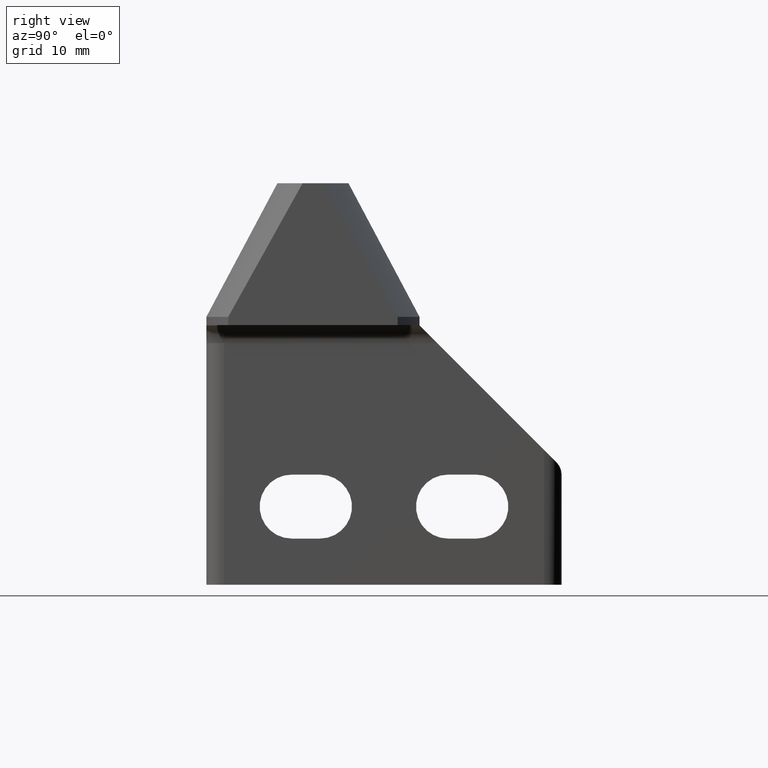
[diagram: clean part render]
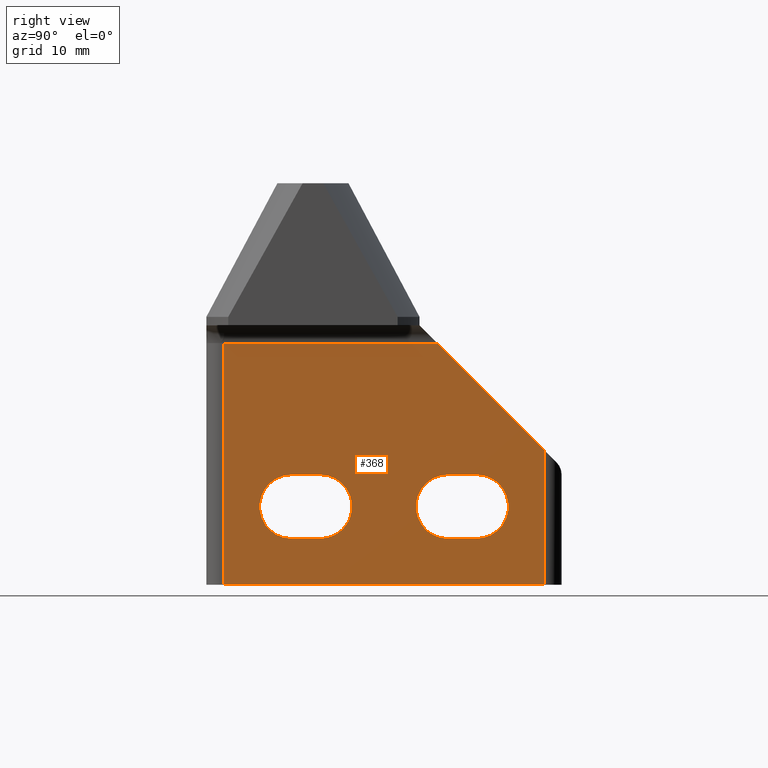
[diagram: same view with one face highlighted and labeled with its STEP entity id]
A machine part, right view. The second image highlights one B-rep face of the part: STEP entity #368.
In plain terms, the highlighted planar face has unit normal (1, -0, -0).
Its self-contained STEP definition (entity closure, byte-faithful):
#8 = VECTOR ( 'NONE', #110, 1000.000000000000000 ) ;
#14 = CARTESIAN_POINT ( 'NONE',  ( 279.1349525314546400, -217.0043693264339900, 44.60903880631751400 ) ) ;
#29 = PLANE ( 'NONE',  #1253 ) ;
#76 = EDGE_CURVE ( 'NONE', #1385, #166, #724, .T. ) ;
#102 = ORIENTED_EDGE ( 'NONE', *, *, #993, .T. ) ;
#106 = LINE ( 'NONE', #131, #312 ) ;
#110 = DIRECTION ( 'NONE',  ( -3.225764467510074200E-025, -1.000000000000000000, 1.634976869430429700E-037 ) ) ;
#123 = CIRCLE ( 'NONE', #285, 4.499999999999990200 ) ;
#130 = DIRECTION ( 'NONE',  ( 3.225764467510074200E-025, 1.000000000000000000, -1.634976869430429700E-037 ) ) ;
#131 = CARTESIAN_POINT ( 'NONE',  ( 279.1349525314591900, -181.5043693264090100, 53.60903880631750700 ) ) ;
#148 = VERTEX_POINT ( 'NONE', #714 ) ;
#153 = VECTOR ( 'NONE', #130, 1000.000000000000000 ) ;
#166 = VERTEX_POINT ( 'NONE', #602 ) ;
#200 = EDGE_CURVE ( 'NONE', #496, #1085, #355, .T. ) ;
#202 = DIRECTION ( 'NONE',  ( 0.0000000000000000000, 0.0000000000000000000, 1.000000000000000000 ) ) ;
#222 = ORIENTED_EDGE ( 'NONE', *, *, #768, .T. ) ;
#231 = CARTESIAN_POINT ( 'NONE',  ( 279.1349525314609500, -181.5043693264090100, 57.10903880629710000 ) ) ;
#234 = VERTEX_POINT ( 'NONE', #881 ) ;
#236 = VECTOR ( 'NONE', #745, 1000.000000000000000 ) ;
#237 = FACE_OUTER_BOUND ( 'NONE', #883, .T. ) ;
#251 = LINE ( 'NONE', #991, #153 ) ;
#266 = CARTESIAN_POINT ( 'NONE',  ( 279.1349525314546400, -195.0043693264339900, 49.10903880631750700 ) ) ;
#278 = DIRECTION ( 'NONE',  ( 0.0000000000000000000, 0.0000000000000000000, 1.000000000000000000 ) ) ;
#281 = ORIENTED_EDGE ( 'NONE', *, *, #647, .T. ) ;
#284 = CARTESIAN_POINT ( 'NONE',  ( 279.1349525314546400, -181.5043693264090100, 44.60903880631751400 ) ) ;
#285 = AXIS2_PLACEMENT_3D ( 'NONE', #266, #807, #1018 ) ;
#302 = EDGE_CURVE ( 'NONE', #955, #1123, #106, .T. ) ;
#312 = VECTOR ( 'NONE', #1226, 1000.000000000000000 ) ;
#313 = CARTESIAN_POINT ( 'NONE',  ( 279.1349525314591900, -191.0043693264339900, 49.10903880631750700 ) ) ;
#326 = CARTESIAN_POINT ( 'NONE',  ( 279.1349525314591900, -191.0043693264339900, 53.60903880631750700 ) ) ;
#329 = EDGE_CURVE ( 'NONE', #1401, #1054, #534, .T. ) ;
#340 = LINE ( 'NONE', #420, #8 ) ;
#341 = DIRECTION ( 'NONE',  ( -5.068494262051460900E-013, 0.0000000000000000000, -1.000000000000000000 ) ) ;
#355 = LINE ( 'NONE', #284, #1166 ) ;
#361 = VECTOR ( 'NONE', #996, 1000.000000000000000 ) ;
#368 = ADVANCED_FACE ( 'NONE', ( #237, #1047, #1014 ), #29, .T. ) ;
#372 = VECTOR ( 'NONE', #689, 1000.000000000000000 ) ;
#386 = CARTESIAN_POINT ( 'NONE',  ( 279.1349525314513500, -181.5043693264090100, 38.10903880631751400 ) ) ;
#387 = CARTESIAN_POINT ( 'NONE',  ( 279.1349525314546400, -213.0043693264339900, 49.10903880631750700 ) ) ;
#388 = ORIENTED_EDGE ( 'NONE', *, *, #200, .T. ) ;
#390 = VERTEX_POINT ( 'NONE', #1213 ) ;
#395 = CARTESIAN_POINT ( 'NONE',  ( 279.1349525314546400, -213.0043693264339900, 44.60903880631751400 ) ) ;
#420 = CARTESIAN_POINT ( 'NONE',  ( 279.1349525314685700, -181.5043693264090100, 72.10903880632290000 ) ) ;
#423 = VERTEX_POINT ( 'NONE', #528 ) ;
#424 = CARTESIAN_POINT ( 'NONE',  ( 279.1349525314546400, -217.0043693264339900, 49.10903880631750700 ) ) ;
#432 = CARTESIAN_POINT ( 'NONE',  ( 279.1349525314546400, -195.0043693264339900, 44.60903880631751400 ) ) ;
#448 = DIRECTION ( 'NONE',  ( -3.225764467510074200E-025, -1.000000000000000000, 1.634976869430429700E-037 ) ) ;
#473 = AXIS2_PLACEMENT_3D ( 'NONE', #313, #1400, #202 ) ;
#496 = VERTEX_POINT ( 'NONE', #732 ) ;
#498 = ORIENTED_EDGE ( 'NONE', *, *, #637, .T. ) ;
#509 = DIRECTION ( 'NONE',  ( 3.225764467510074200E-025, 1.000000000000000000, -1.634976869430429700E-037 ) ) ;
#528 = CARTESIAN_POINT ( 'NONE',  ( 279.1349525314818200, -196.5043693264342200, 72.10903880632270100 ) ) ;
#534 = LINE ( 'NONE', #676, #361 ) ;
#559 = ORIENTED_EDGE ( 'NONE', *, *, #329, .T. ) ;
#566 = EDGE_CURVE ( 'NONE', #1123, #496, #1102, .T. ) ;
#573 = ORIENTED_EDGE ( 'NONE', *, *, #1064, .T. ) ;
#590 = CARTESIAN_POINT ( 'NONE',  ( 279.1349525314569200, -195.0043693264339900, 53.60903880631750700 ) ) ;
#602 = CARTESIAN_POINT ( 'NONE',  ( 279.1349525314619800, -181.5043693264057700, 57.10903880629405900 ) ) ;
#637 = EDGE_CURVE ( 'NONE', #423, #390, #340, .T. ) ;
#639 = EDGE_LOOP ( 'NONE', ( #718, #573, #102, #559 ) ) ;
#647 = EDGE_CURVE ( 'NONE', #1085, #955, #123, .T. ) ;
#664 = CIRCLE ( 'NONE', #896, 4.499999999999990200 ) ;
#671 = DIRECTION ( 'NONE',  ( 3.585044447321881000E-013, -0.7071067811865292500, 0.7071067811865658900 ) ) ;
#675 = ORIENTED_EDGE ( 'NONE', *, *, #302, .T. ) ;
#676 = CARTESIAN_POINT ( 'NONE',  ( 279.1349525314546400, -181.5043693264090100, 44.60903880631751400 ) ) ;
#689 = DIRECTION ( 'NONE',  ( 5.068494262051460900E-013, -0.0000000000000000000, 1.000000000000000000 ) ) ;
#699 = CARTESIAN_POINT ( 'NONE',  ( 279.1349525314609500, -181.5043693264090100, 57.10903880629710000 ) ) ;
#714 = CARTESIAN_POINT ( 'NONE',  ( 279.1349525314569200, -217.0043693264339900, 53.60903880631750700 ) ) ;
#718 = ORIENTED_EDGE ( 'NONE', *, *, #874, .T. ) ;
#722 = CARTESIAN_POINT ( 'NONE',  ( 279.1349525314513500, -181.5043693264014200, 38.10903880631752800 ) ) ;
#724 = LINE ( 'NONE', #1239, #372 ) ;
#728 = VECTOR ( 'NONE', #671, 1000.000000000000000 ) ;
#732 = CARTESIAN_POINT ( 'NONE',  ( 279.1349525314569200, -191.0043693264339900, 44.60903880631751400 ) ) ;
#745 = DIRECTION ( 'NONE',  ( -5.068494262051460900E-013, 0.0000000000000000000, -1.000000000000000000 ) ) ;
#757 = ORIENTED_EDGE ( 'NONE', *, *, #1028, .T. ) ;
#768 = EDGE_CURVE ( 'NONE', #390, #234, #1154, .T. ) ;
#772 = ORIENTED_EDGE ( 'NONE', *, *, #76, .T. ) ;
#807 = DIRECTION ( 'NONE',  ( -1.000000000000000000, -0.0000000000000000000, 2.449212707644750100E-016 ) ) ;
#874 = EDGE_CURVE ( 'NONE', #1054, #148, #967, .T. ) ;
#881 = CARTESIAN_POINT ( 'NONE',  ( 279.1349525314513500, -226.5043693264349300, 38.10903880631872900 ) ) ;
#883 = EDGE_LOOP ( 'NONE', ( #498, #222, #1044, #772, #757 ) ) ;
#892 = DIRECTION ( 'NONE',  ( 1.000000000000000000, -3.225764467510074200E-025, -5.068494262051460900E-013 ) ) ;
#896 = AXIS2_PLACEMENT_3D ( 'NONE', #387, #1024, #278 ) ;
#955 = VERTEX_POINT ( 'NONE', #590 ) ;
#962 = CARTESIAN_POINT ( 'NONE',  ( 279.1349525314609500, -226.5043693264350400, 57.10903880629710000 ) ) ;
#967 = CIRCLE ( 'NONE', #1003, 4.499999999999990200 ) ;
#991 = CARTESIAN_POINT ( 'NONE',  ( 279.1349525314591900, -181.5043693264090100, 53.60903880631750700 ) ) ;
#993 = EDGE_CURVE ( 'NONE', #1197, #1401, #664, .T. ) ;
#996 = DIRECTION ( 'NONE',  ( -3.225764467510074200E-025, -1.000000000000000000, 1.634976869430429700E-037 ) ) ;
#1003 = AXIS2_PLACEMENT_3D ( 'NONE', #424, #1194, #1305 ) ;
#1011 = LINE ( 'NONE', #699, #728 ) ;
#1014 = FACE_BOUND ( 'NONE', #1243, .T. ) ;
#1018 = DIRECTION ( 'NONE',  ( 0.0000000000000000000, 0.0000000000000000000, 1.000000000000000000 ) ) ;
#1024 = DIRECTION ( 'NONE',  ( -1.000000000000000000, -0.0000000000000000000, 2.449212707644750100E-016 ) ) ;
#1028 = EDGE_CURVE ( 'NONE', #166, #423, #1011, .T. ) ;
#1044 = ORIENTED_EDGE ( 'NONE', *, *, #1310, .T. ) ;
#1047 = FACE_BOUND ( 'NONE', #639, .T. ) ;
#1054 = VERTEX_POINT ( 'NONE', #14 ) ;
#1059 = CARTESIAN_POINT ( 'NONE',  ( 279.1349525314569200, -213.0043693264339900, 53.60903880631750700 ) ) ;
#1064 = EDGE_CURVE ( 'NONE', #148, #1197, #251, .T. ) ;
#1082 = LINE ( 'NONE', #386, #1331 ) ;
#1085 = VERTEX_POINT ( 'NONE', #432 ) ;
#1102 = CIRCLE ( 'NONE', #473, 4.499999999999990200 ) ;
#1123 = VERTEX_POINT ( 'NONE', #326 ) ;
#1154 = LINE ( 'NONE', #962, #236 ) ;
#1166 = VECTOR ( 'NONE', #448, 1000.000000000000000 ) ;
#1194 = DIRECTION ( 'NONE',  ( -1.000000000000000000, -0.0000000000000000000, 2.449212707644750100E-016 ) ) ;
#1197 = VERTEX_POINT ( 'NONE', #1059 ) ;
#1213 = CARTESIAN_POINT ( 'NONE',  ( 279.1349525314917600, -226.5043693264350400, 72.10903880632217500 ) ) ;
#1226 = DIRECTION ( 'NONE',  ( 3.225764467510074200E-025, 1.000000000000000000, -1.634976869430429700E-037 ) ) ;
#1239 = CARTESIAN_POINT ( 'NONE',  ( 279.1349525314609500, -181.5043693264035200, 57.10903880629710000 ) ) ;
#1243 = EDGE_LOOP ( 'NONE', ( #281, #675, #1271, #388 ) ) ;
#1253 = AXIS2_PLACEMENT_3D ( 'NONE', #231, #892, #341 ) ;
#1271 = ORIENTED_EDGE ( 'NONE', *, *, #566, .T. ) ;
#1305 = DIRECTION ( 'NONE',  ( 0.0000000000000000000, 0.0000000000000000000, 1.000000000000000000 ) ) ;
#1310 = EDGE_CURVE ( 'NONE', #234, #1385, #1082, .T. ) ;
#1331 = VECTOR ( 'NONE', #509, 1000.000000000000000 ) ;
#1385 = VERTEX_POINT ( 'NONE', #722 ) ;
#1400 = DIRECTION ( 'NONE',  ( -1.000000000000000000, -0.0000000000000000000, 2.449212707644750100E-016 ) ) ;
#1401 = VERTEX_POINT ( 'NONE', #395 ) ;